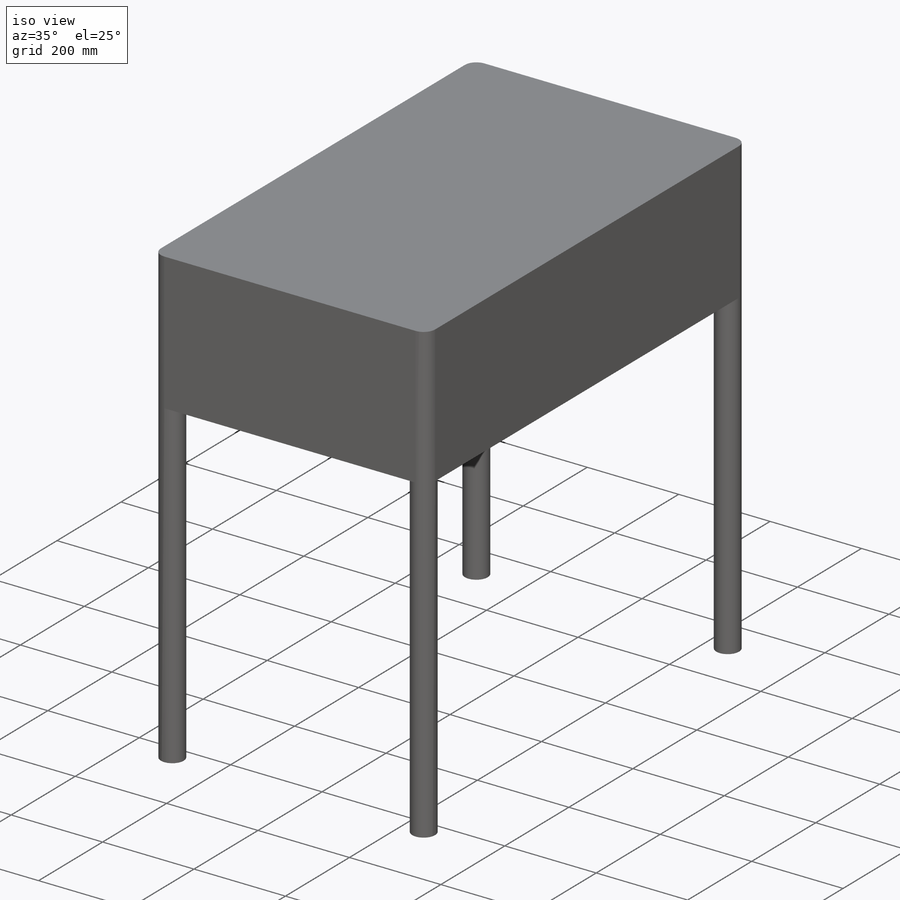
[diagram: iso view]
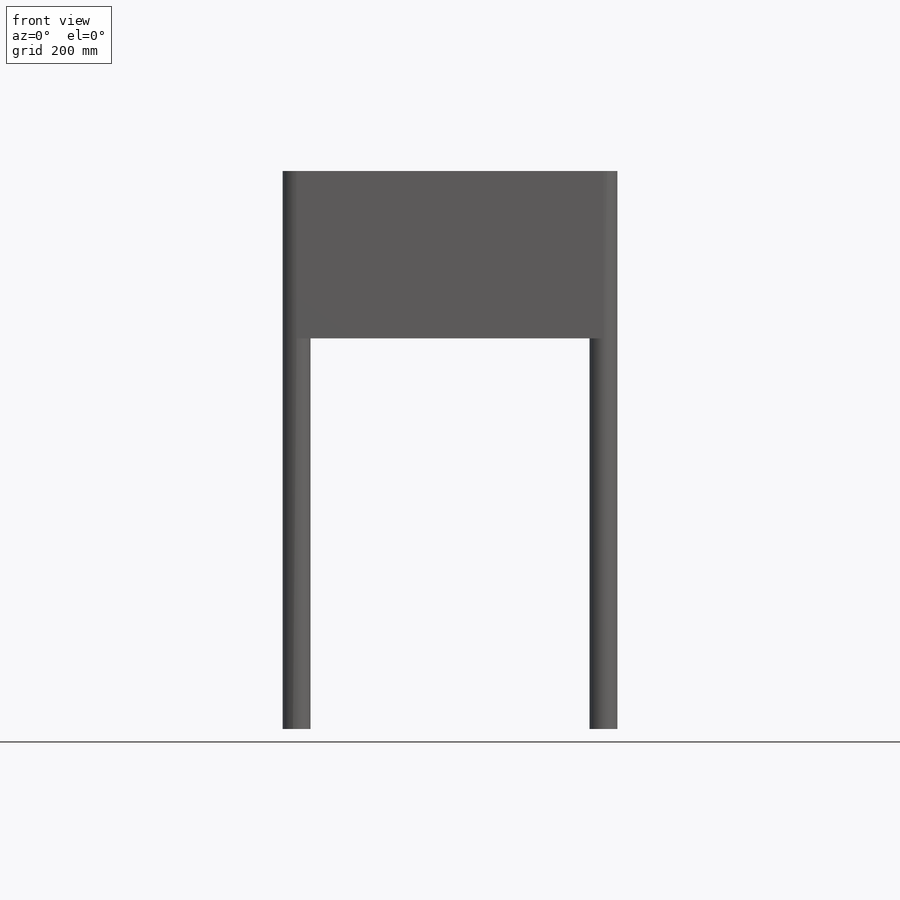
[diagram: front view]
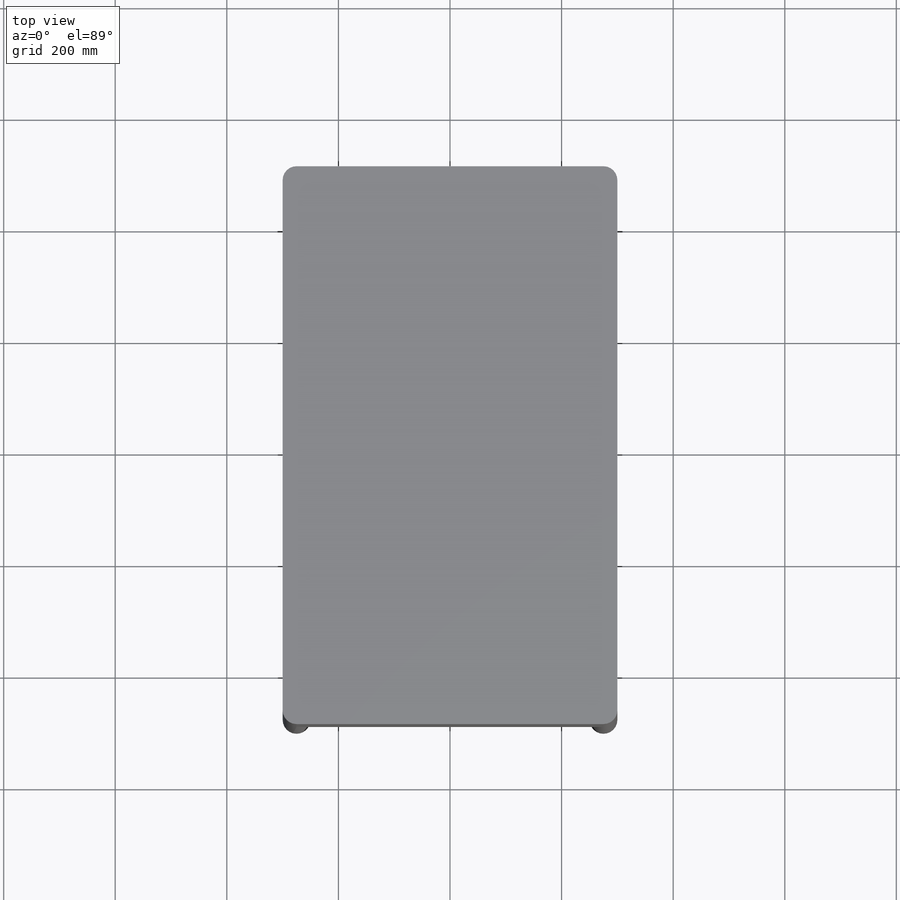
[diagram: top view]
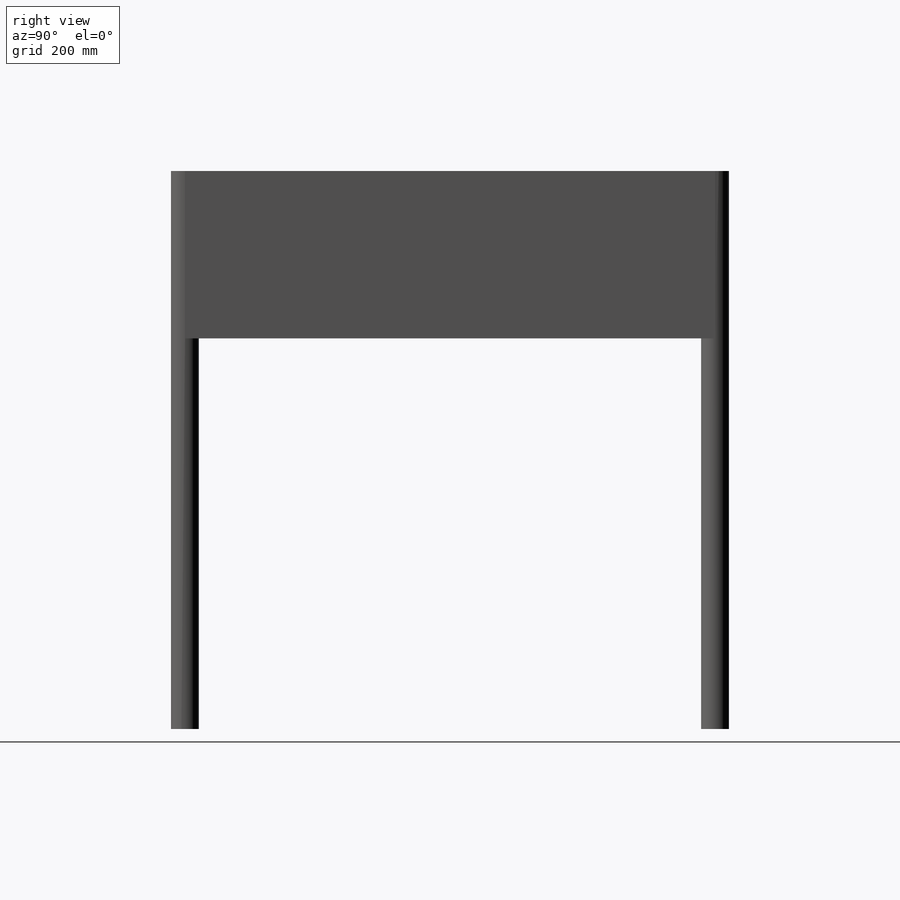
[diagram: right view]
SOLIDWORKS PART (.sldprt)
format: sldprt  version: not decoded by parser v0  size: 435,712 bytes
history: native  units: mm
features: plane x3, sketch x2, extrude x2, mirror x2, material x1, fillet x1 (+7 scaffold rows collapsed)
feature tree (18):
  scaffold x7  (default folders/planes/origin — collapsed)
  material  "红木"
  plane  "前视基准面"
  plane  "上视基准面"
  plane  "右视基准面"
  sketch  "草图2"  dims[c1.D1=~170.750172mm c1.D2=~88.524167mm c2.D1=1000.0mm c2.D2=600.0mm]
  extrude  "凸台-拉伸1"  Depth=300mm
  fillet  "圆角1"  Radius=25mm
  sketch  "草图3"  dims[D1=~74.947668mm]
  extrude  "凸台-拉伸2"  Depth=1000mm
  mirror  "镜向1"
  mirror  "镜向2"
decode coverage: 5 of 7 modeling features carry decoded parameters
note: ~ marks probable driven/reference dimensions
note: suppression state not decoded; provenance and decode notes live in map.json
